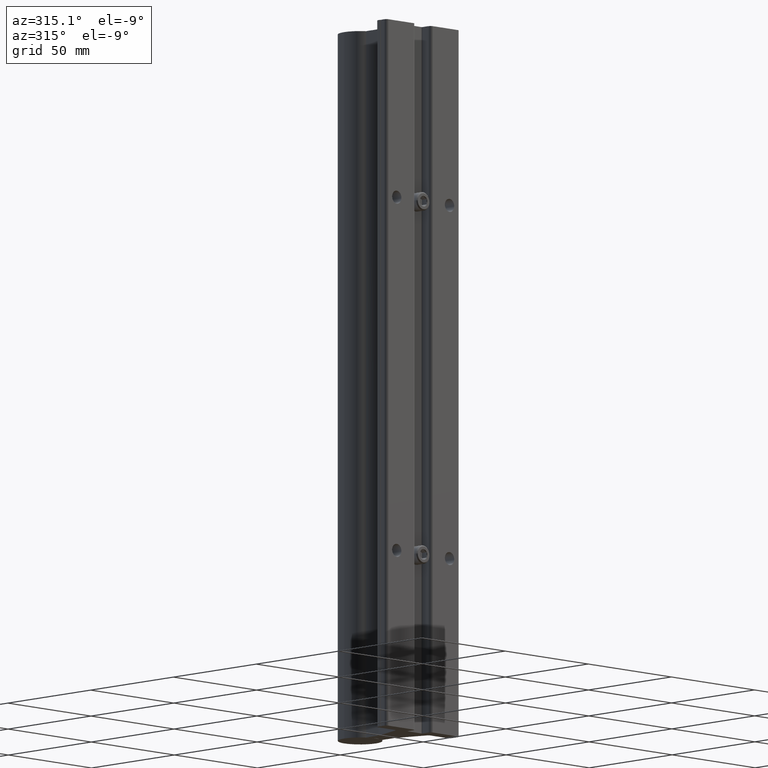
[diagram: clean part render]
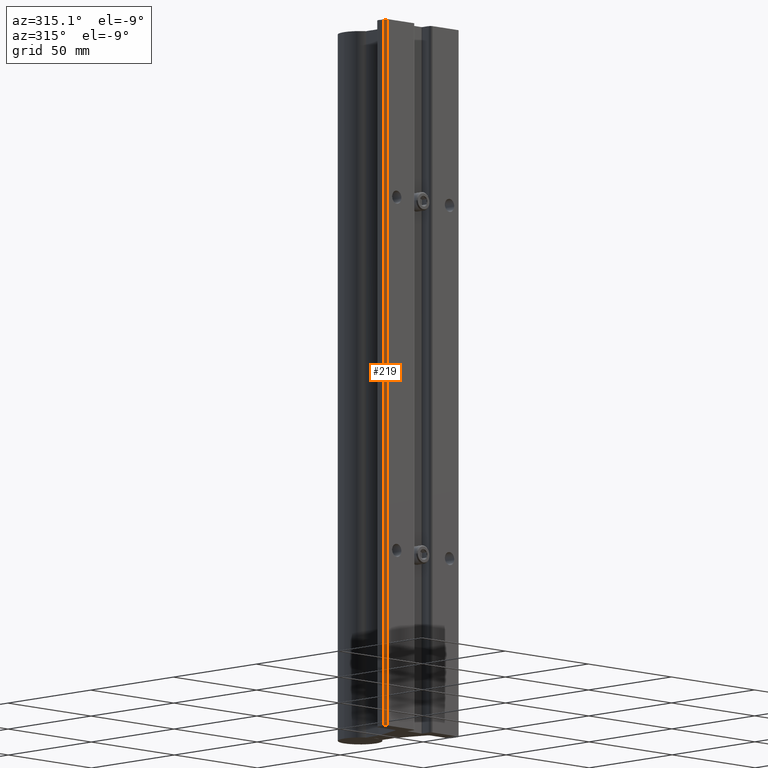
[diagram: same view with one face highlighted and labeled with its STEP entity id]
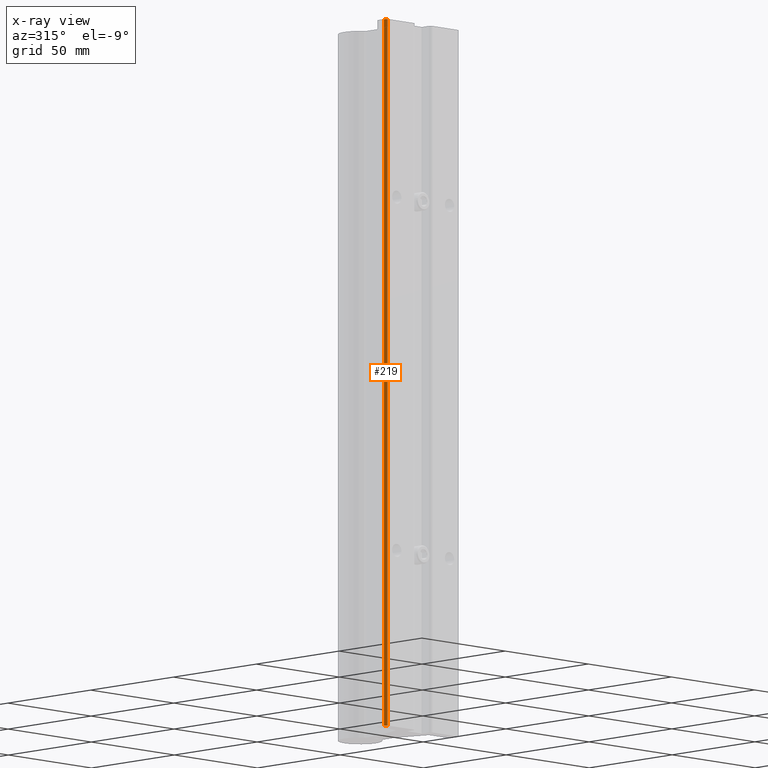
[diagram: x-ray of the same camera — body ghosted, the highlighted face saturated]
A machine part, auxiliary view. The second image highlights one B-rep face of the part: STEP entity #219.
The next image is the same camera in x-ray: the body ghosted, the highlighted face saturated — about 0% of this face is hidden behind the body in this view.
In plain terms, the highlighted cylindrical surface (edge-blend (fillet) strip) has radius 1.524 mm, axis along (0, 0, 1).
Its self-contained STEP definition (entity closure, byte-faithful):
#28 = DIRECTION ( 'NONE',  ( 0.000000000000000000, 0.000000000000000000, 1.000000000000000000 ) ) ;
#219 = ADVANCED_FACE ( 'NONE', ( #3901 ), #3286, .T. ) ;
#229 = CARTESIAN_POINT ( 'NONE',  ( -0.8150000000000001688, 0.06000000000000004635, -12.00000000000000178 ) ) ;
#325 = VERTEX_POINT ( 'NONE', #3253 ) ;
#329 = AXIS2_PLACEMENT_3D ( 'NONE', #229, #1457, #2911 ) ;
#387 = CARTESIAN_POINT ( 'NONE',  ( -0.8750000000000001110, 0.06000000000000004635, -12.00000000000000178 ) ) ;
#486 = EDGE_CURVE ( 'NONE', #325, #2300, #1384, .T. ) ;
#591 = CARTESIAN_POINT ( 'NONE',  ( -0.8355212085995393778, 0.003618442752845316395, -14.10463218188033174 ) ) ;
#661 = DIRECTION ( 'NONE',  ( 1.000000000000000000, 0.000000000000000000, 0.000000000000000000 ) ) ;
#689 = EDGE_CURVE ( 'NONE', #2780, #325, #1334, .T. ) ;
#981 = CARTESIAN_POINT ( 'NONE',  ( -0.8750000000000001110, 0.06000000000000004635, -14.10463218188033174 ) ) ;
#1133 = AXIS2_PLACEMENT_3D ( 'NONE', #3321, #2734, #3025 ) ;
#1195 = VECTOR ( 'NONE', #3762, 39.37007874015748143 ) ;
#1334 = LINE ( 'NONE', #981, #1195 ) ;
#1384 = CIRCLE ( 'NONE', #2910, 0.05999999999999990757 ) ;
#1457 = DIRECTION ( 'NONE',  ( -0.000000000000000000, -0.000000000000000000, -1.000000000000000000 ) ) ;
#1511 = CIRCLE ( 'NONE', #329, 0.05999999999999990757 ) ;
#1646 = ORIENTED_EDGE ( 'NONE', *, *, #2240, .T. ) ;
#1647 = CARTESIAN_POINT ( 'NONE',  ( -0.8355212085995393778, 0.003618442752845316395, 0.000000000000000000 ) ) ;
#1662 = EDGE_CURVE ( 'NONE', #2993, #2780, #1511, .T. ) ;
#1788 = DIRECTION ( 'NONE',  ( 0.000000000000000000, 0.000000000000000000, 1.000000000000000000 ) ) ;
#1800 = LINE ( 'NONE', #591, #3497 ) ;
#2240 = EDGE_CURVE ( 'NONE', #2993, #2300, #1800, .T. ) ;
#2300 = VERTEX_POINT ( 'NONE', #1647 ) ;
#2376 = CARTESIAN_POINT ( 'NONE',  ( -0.8150000000000001688, 0.06000000000000004635, 0.000000000000000000 ) ) ;
#2377 = EDGE_LOOP ( 'NONE', ( #2920, #1646, #2933, #3416 ) ) ;
#2734 = DIRECTION ( 'NONE',  ( 0.000000000000000000, 0.000000000000000000, 1.000000000000000000 ) ) ;
#2780 = VERTEX_POINT ( 'NONE', #387 ) ;
#2910 = AXIS2_PLACEMENT_3D ( 'NONE', #2376, #28, #661 ) ;
#2911 = DIRECTION ( 'NONE',  ( 1.000000000000000000, 0.000000000000000000, 0.000000000000000000 ) ) ;
#2920 = ORIENTED_EDGE ( 'NONE', *, *, #1662, .F. ) ;
#2933 = ORIENTED_EDGE ( 'NONE', *, *, #486, .F. ) ;
#2993 = VERTEX_POINT ( 'NONE', #3660 ) ;
#3025 = DIRECTION ( 'NONE',  ( 1.000000000000000000, 0.000000000000000000, 0.000000000000000000 ) ) ;
#3253 = CARTESIAN_POINT ( 'NONE',  ( -0.8750000000000001110, 0.06000000000000004635, 0.000000000000000000 ) ) ;
#3286 = CYLINDRICAL_SURFACE ( 'NONE', #1133, 0.05999999999999990757 ) ;
#3321 = CARTESIAN_POINT ( 'NONE',  ( -0.8150000000000001688, 0.06000000000000004635, -14.10463218188033174 ) ) ;
#3416 = ORIENTED_EDGE ( 'NONE', *, *, #689, .F. ) ;
#3497 = VECTOR ( 'NONE', #1788, 39.37007874015748143 ) ;
#3660 = CARTESIAN_POINT ( 'NONE',  ( -0.8355212085995393778, 0.003618442752845316395, -12.00000000000000178 ) ) ;
#3762 = DIRECTION ( 'NONE',  ( 0.000000000000000000, 0.000000000000000000, 1.000000000000000000 ) ) ;
#3901 = FACE_OUTER_BOUND ( 'NONE', #2377, .T. ) ;